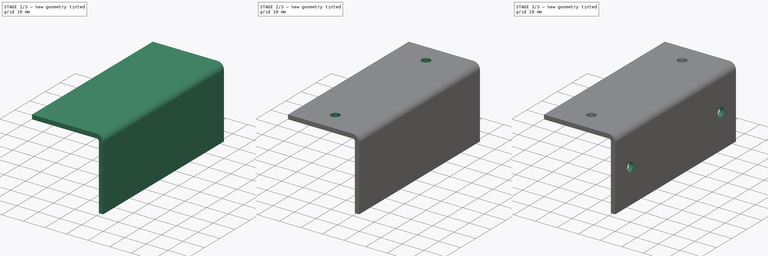
[diagram: build sequence overview — one tinted view per stage of 3, left to right]
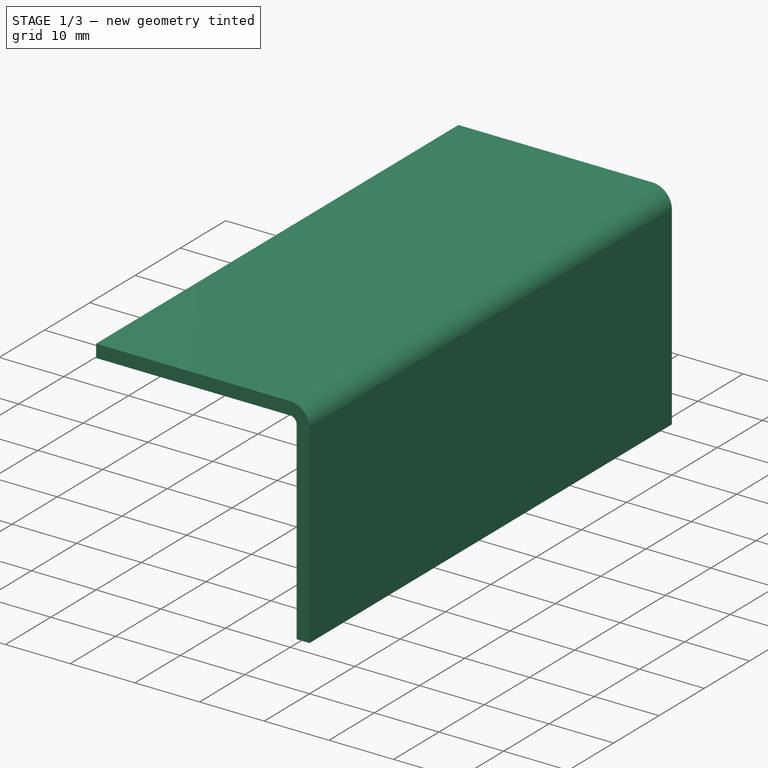
[diagram: stage 1 of 3 — iso view after this stage's code; geometry added in this stage tinted green]
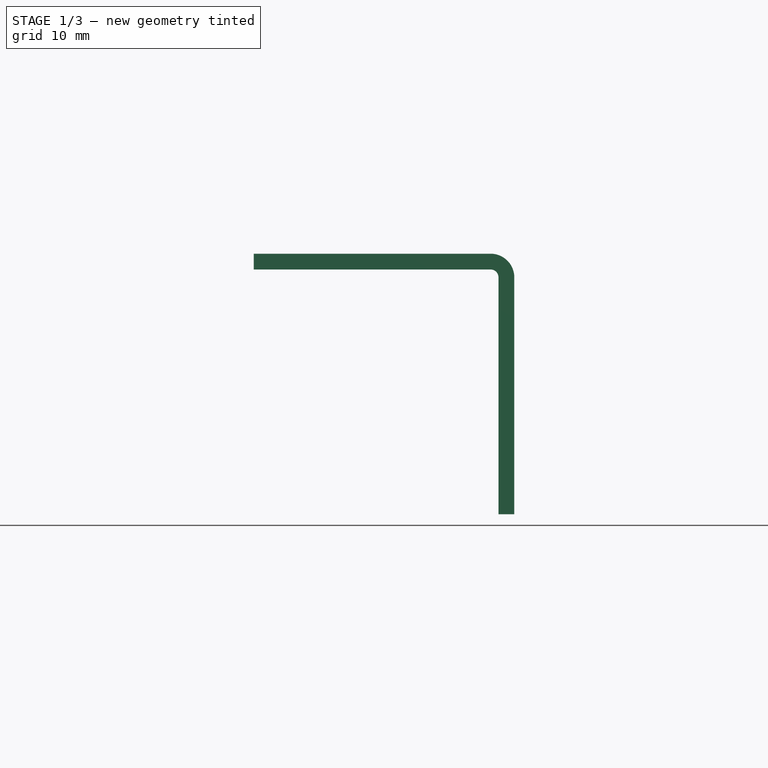
[diagram: stage 1 of 3 — front view after this stage's code; geometry added in this stage tinted green]
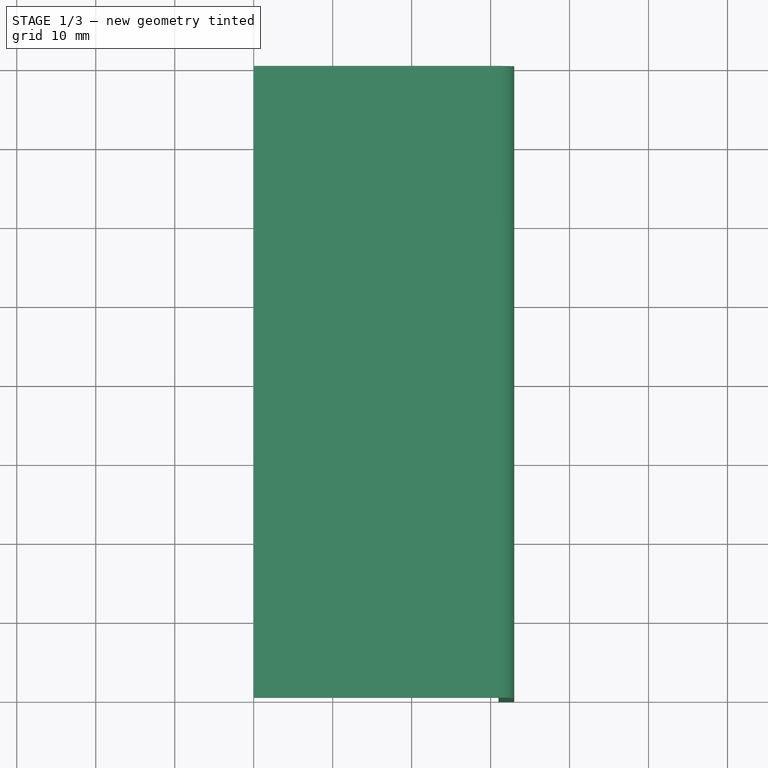
[diagram: stage 1 of 3 — top view after this stage's code; geometry added in this stage tinted green]
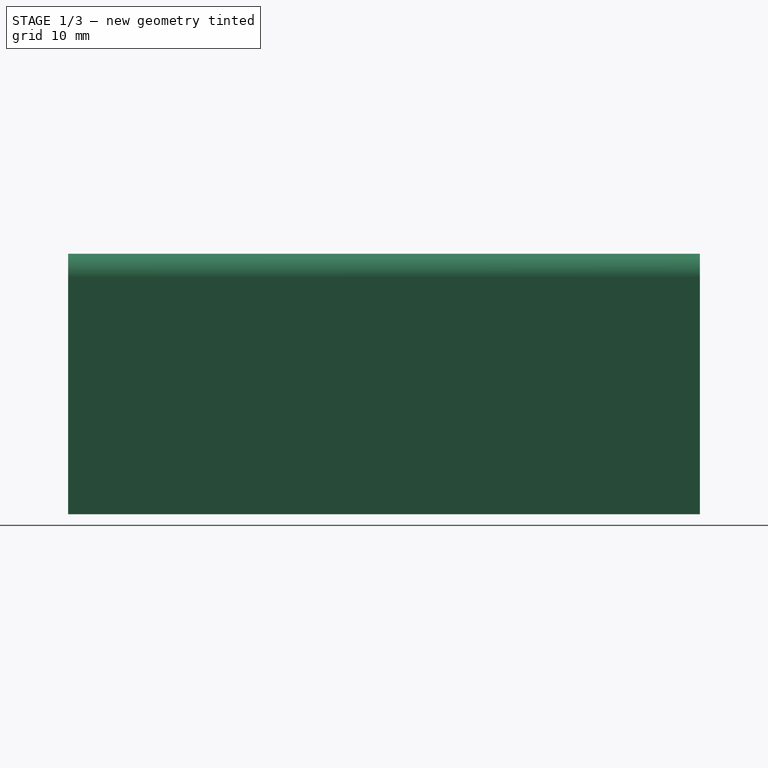
[diagram: stage 1 of 3 — right view after this stage's code; geometry added in this stage tinted green]
FCSTD DOCUMENT  (FreeCAD 0.17R13528 (Git))
Label: SupportPanneauDessusConsole
License: All rights reserved
LicenseURL: http://en.wikipedia.org/wiki/All_rights_reserved
objects: Drawing::FeatureViewPython×10, Sketcher::SketchObject×3, PartDesign::Pocket×3, Drawing::FeatureViewPart×3, Part::Box×1, Part::FeaturePython×1, PartDesign::FeatureBase×1, PartDesign::LinearPattern×1, PartDesign::Body×1, Drawing::FeaturePage×1
note: 14 computed .brp shape members not serialized (recipe doc carries the construction recipe); baked Part::Feature solids carry a one-line shape summary decoded from their .brp

FEATURE [Part::Box] Box  label="Cube"
  AttacherType = Attacher::AttachEngine3D
  Height = 2
  Length = 30
  Width = 80
FEATURE [Part::FeaturePython] Bend  # WARN: FeaturePython — macro-defined, semantics opaque (R4)
  angle = 90
  baseObject = -> Box [Face2]
  gap1 = 0
  gap2 = 0
  invert = true
  length = 30
  radius = 1
  reliefd = 1
  reliefw = 0.5
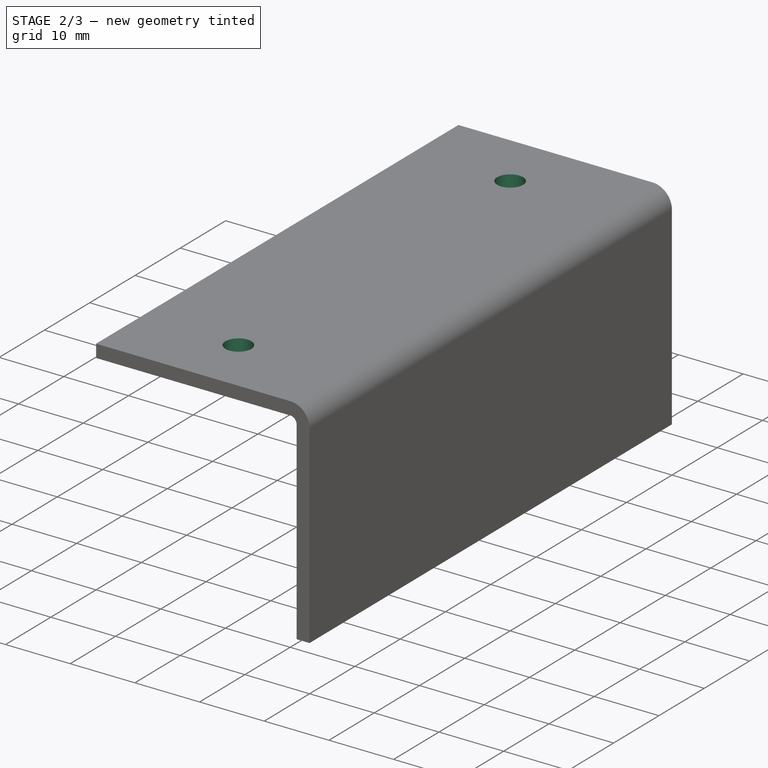
[diagram: stage 2 of 3 — iso view after this stage's code; geometry added in this stage tinted green]
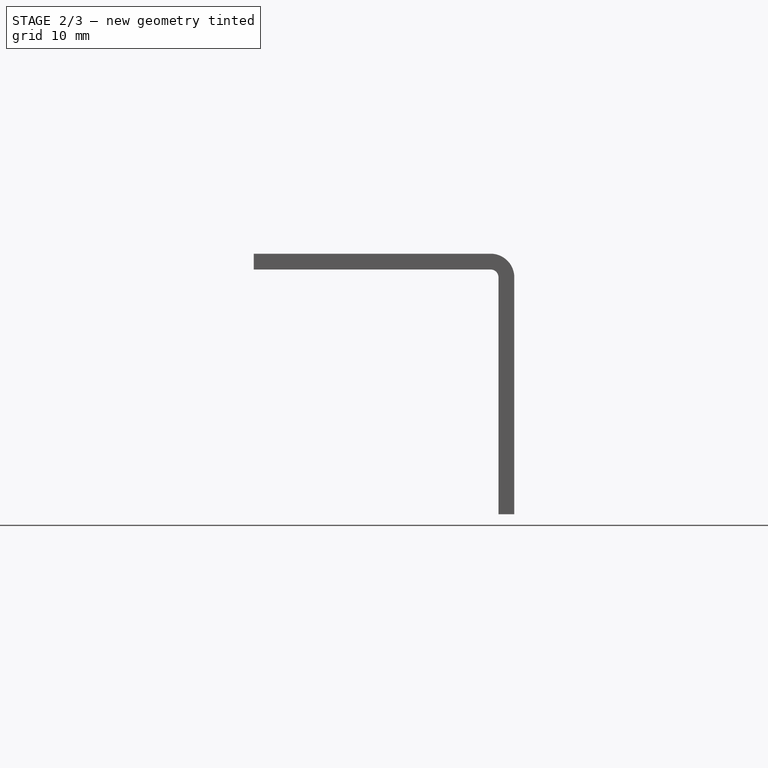
[diagram: stage 2 of 3 — front view after this stage's code; geometry added in this stage tinted green]
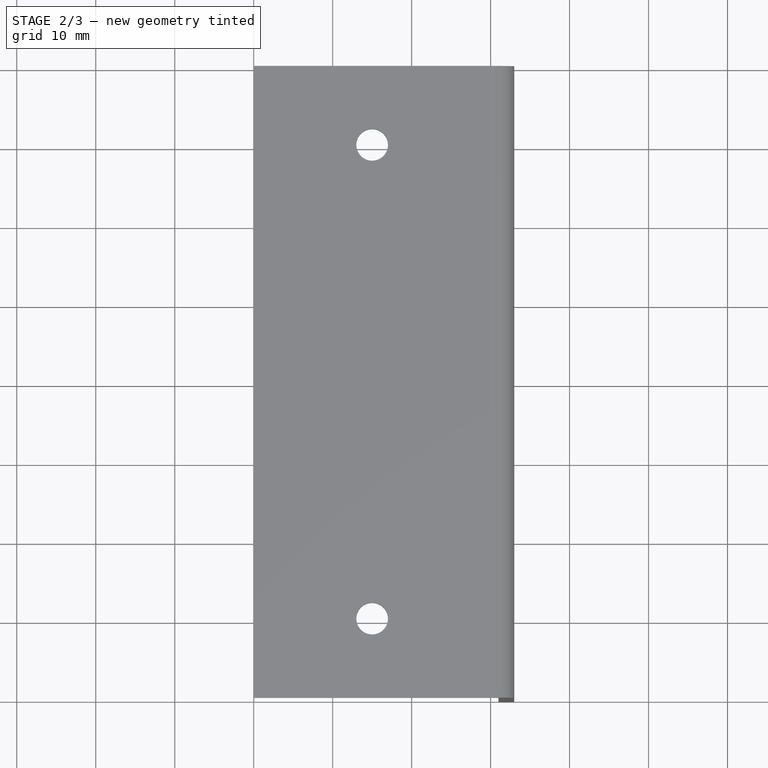
[diagram: stage 2 of 3 — top view after this stage's code; geometry added in this stage tinted green]
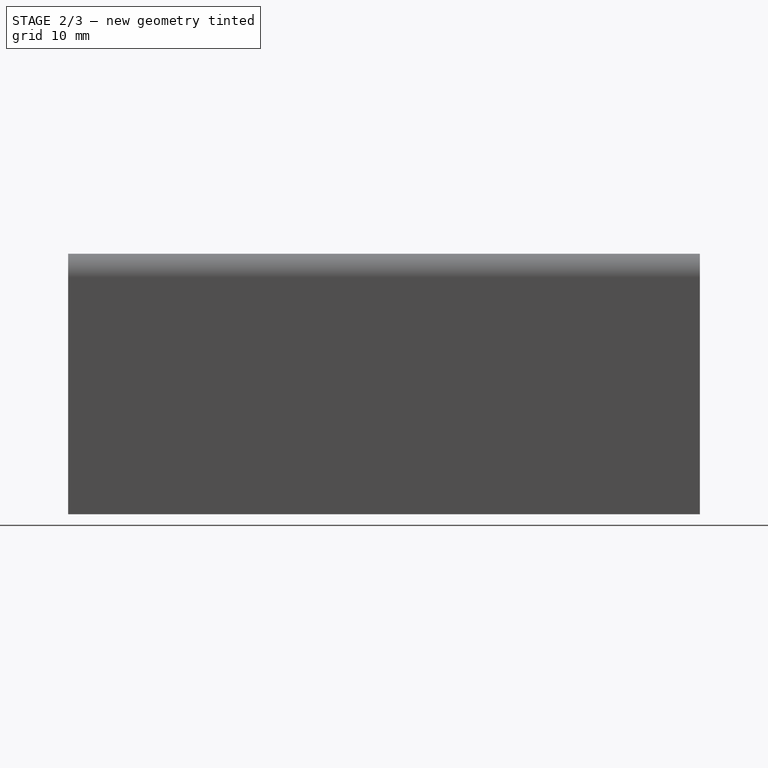
[diagram: stage 2 of 3 — right view after this stage's code; geometry added in this stage tinted green]
FEATURE [PartDesign::FeatureBase] BaseFeature
  BaseFeature = -> Bend
FEATURE [Sketcher::SketchObject] Sketch
  MapMode = 5
  Placement = pos=(0,0,2) rot=(0,0,1;0rad)
  Support = -> [BaseFeature]
  sketch-geometry (1):
    g0: Circle CenterX=15 CenterY=10 CenterZ=0 NormalX=0 NormalY=0 NormalZ=1 AngleXU=0 Radius=2
  constraints (3):
    c: DistanceX(g0) = 15
    c: DistanceY(g0) = 10
    c: Radius(g0) = 2
FEATURE [PartDesign::Pocket] Pocket
  BaseFeature = -> BaseFeature
  Length = 5
  Length2 = 100
  Profile = -> Sketch
  Refine = true
  Type = 1
FEATURE [PartDesign::LinearPattern] LinearPattern
  BaseFeature = -> Pocket
  Direction = -> Y_Axis
  Length = 60
  Occurrences = 2
  Originals = -> [Pocket]
  Refine = true
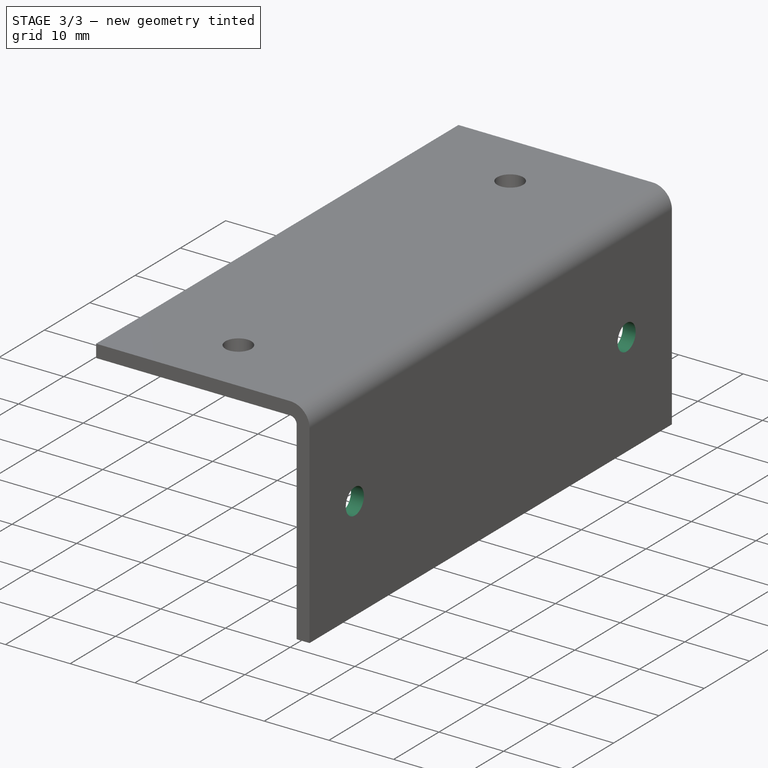
[diagram: stage 3 of 3 — iso view after this stage's code; geometry added in this stage tinted green]
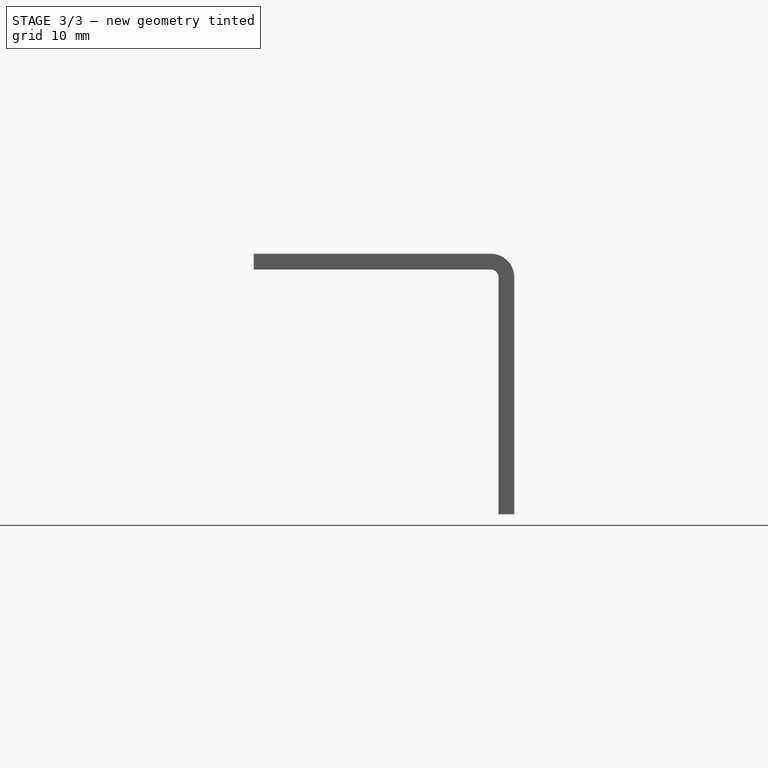
[diagram: stage 3 of 3 — front view after this stage's code; geometry added in this stage tinted green]
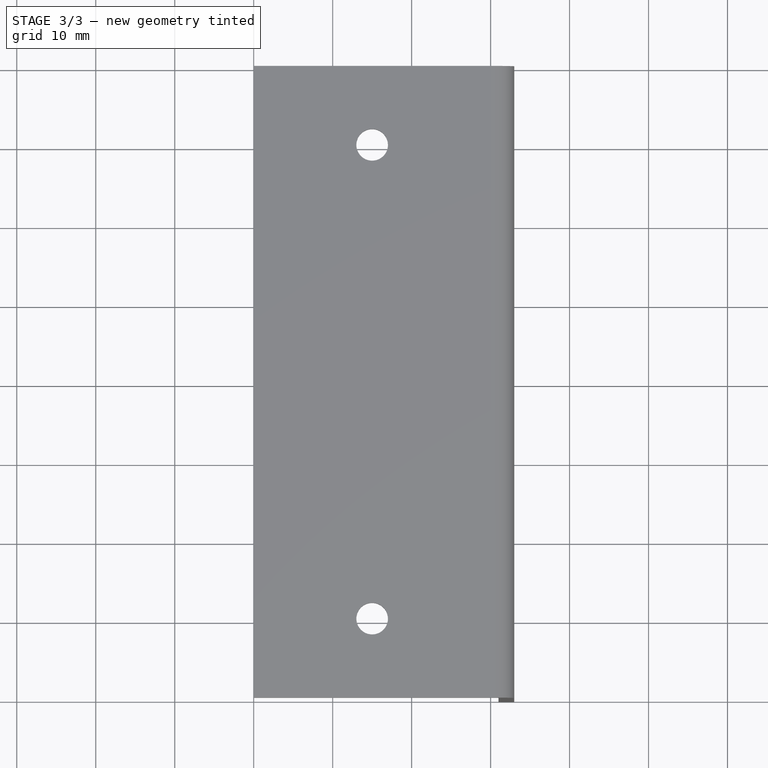
[diagram: stage 3 of 3 — top view after this stage's code; geometry added in this stage tinted green]
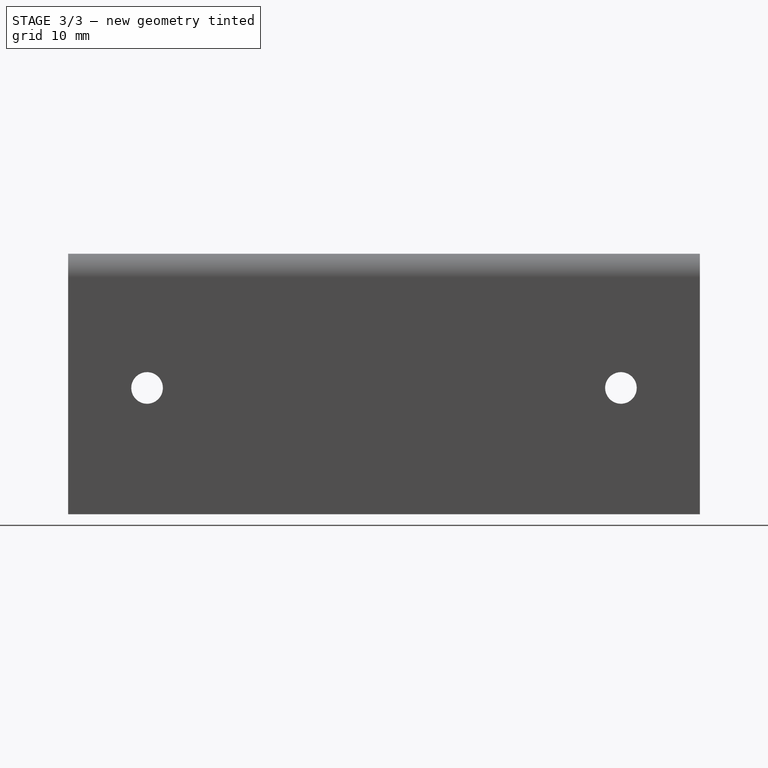
[diagram: stage 3 of 3 — right view after this stage's code; geometry added in this stage tinted green]
FEATURE [Sketcher::SketchObject] Sketch001
  MapMode = 5
  Placement = pos=(33,0,0) rot=(0.57735,0.57735,0.57735;2.0944rad)
  Support = -> [LinearPattern]
  sketch-geometry (1):
    g0: Circle CenterX=10 CenterY=-15 CenterZ=0 NormalX=0 NormalY=0 NormalZ=1 AngleXU=0 Radius=2
  constraints (3):
    c: DistanceX(g0) = 10
    c: DistanceY(g0) = -15
    c: Radius(g0) = 2
FEATURE [PartDesign::Pocket] Pocket001
  BaseFeature = -> LinearPattern
  Length = 5
  Length2 = 100
  Profile = -> Sketch001
  Refine = true
  Type = 1
FEATURE [Sketcher::SketchObject] Sketch002
  MapMode = 5
  Placement = pos=(33,0,0) rot=(0.57735,0.57735,0.57735;2.0944rad)
  Support = -> [Pocket001]
  sketch-geometry (1):
    g0: Circle CenterX=70 CenterY=-15 CenterZ=0 NormalX=0 NormalY=0 NormalZ=1 AngleXU=0 Radius=2
  constraints (3):
    c: DistanceX(g0) = 70
    c: DistanceY(g0) = -15
    c: Radius(g0) = 2
FEATURE [PartDesign::Pocket] Pocket002
  BaseFeature = -> Pocket001
  Length = 5
  Length2 = 100
  Profile = -> Sketch002
  Refine = true
  Type = 1
FEATURE [PartDesign::Body] Body
  BaseFeature = -> Bend
  Group = -> [BaseFeature,Sketch,Pocket,LinearPattern,Sketch001,Pocket001,Sketch002,Pocket002]
  Origin = -> Origin
  Tip = -> Pocket002
FEATURE [Drawing::FeatureViewPart] Ortho  label="Ortho_0_0"
  Direction = (1,0,0)
  HiddenWidth = 0.15
  LineWidth = 0.35
  Rotation = -90
  ShowHiddenLines = true
  ShowSmoothLines = false
  Source = -> Pocket002
  Tolerance = 0.05
  ViewResult = <blob: 6787 chars omitted>
  Visible = true
  X = 120
  Y = 106
FEATURE [Drawing::FeatureViewPart] Ortho004  label="Ortho_1_0"
  Direction = (0,-1,0)
  HiddenWidth = 0.15
  LineWidth = 0.35
  Rotation = 90
  ShowHiddenLines = true
  ShowSmoothLines = false
  Source = -> Pocket002
  Tolerance = 0.05
  ViewResult = <blob: 6730 chars omitted>
  Visible = true
  X = 233.5
  Y = 106
FEATURE [Drawing::FeatureViewPart] Ortho005  label="Ortho_-1_1"
  Direction = (0.57735,0.57735,-0.57735)
  HiddenWidth = 0.15
  LineWidth = 0.35
  Rotation = 60
  ShowHiddenLines = true
  ShowSmoothLines = false
  Source = -> Pocket002
  Tolerance = 0.05
  ViewResult = <blob: 5210 chars omitted>
  Visible = true
  X = 53.383
  Y = 71.2268
FEATURE [Drawing::FeatureViewPython] dim001  # drawing view (typed FeaturePython)
  Rotation = 0
  ViewResult = <g> \n  <line x1="120.000000" y1="139.000000" x2="120.000000" y2="151.000000" style="stroke:rgb(0,0,255);stroke-width:0.30" />\n<line x1="200.000000" y1="139.000000" x2="200.000000" y2="151.000000" style="stroke:rgb(0,0,255);stroke-width:0.30" />\n<line x1="120.000000" y1="150.000000" x2="200.000000" y2="150.000000" style="stroke:rgb(0,0,255);stroke-width:0.30" /> \n  <polygon points="200.000000,150.000000 197.000000,149.000000 196.000000,150.000000 197.000000,151.000000" style="fill:rgb(0,0,255);stroke:rgb(0,0,255);stroke-width:0" /><polygon points="120.000000,150.000000 123.000000,151.000000 124.000000,150.000000 123.000000,149.000000" style="fill:rgb(0,0,255);stroke:rgb(0,0,255);stroke-width:0" /> \n  <text x="160.000000" y="148.000000" font-family="Verdana" font-size="3.6" fill="rgb(0,0,255)" text-anchor="middle" transform="rotate(0.000000 160.000000,148.000000)" > 80</text> </g>
  Visible = true
  X = 0
  Y = 0
  arrowL1 = 3
  arrowL2 = 1
  arrowW = 2
  arrow_scheme = 0
  autoPlaceOffset = 2
  autoPlaceText = true
  click1_x = 140
  click1_y = 150
  click2_x = 140
  click2_y = 150
  comma_decimal_place = false
  dimension_line_overshoot = 1
  gap_datum_points = 2
  halfDimension_linear = false
  lineColor = rgb(0,0,255)
  strokeWidth = 0.3
  textFormat_linear = %(value)3.0f
  textRenderer_color = rgb(0,0,255)
  textRenderer_family = Verdana
  textRenderer_size = 3.6
  unit_custom_scale = 1
  unit_scheme = 0
FEATURE [Drawing::FeatureViewPython] dim002  # drawing view (typed FeaturePython)
  Rotation = 0
  ViewResult = <g> \n  <line x1="233.500000" y1="102.000000" x2="233.500000" y2="89.000000" style="stroke:rgb(0,0,255);stroke-width:0.30" />\n<line x1="263.500000" y1="102.000000" x2="263.500000" y2="89.000000" style="stroke:rgb(0,0,255);stroke-width:0.30" />\n<line x1="233.500000" y1="90.000000" x2="263.500000" y2="90.000000" style="stroke:rgb(0,0,255);stroke-width:0.30" /> \n  <polygon points="263.500000,90.000000 260.500000,89.000000 259.500000,90.000000 260.500000,91.000000" style="fill:rgb(0,0,255);stroke:rgb(0,0,255);stroke-width:0" /><polygon points="233.500000,90.000000 236.500000,91.000000 237.500000,90.000000 236.500000,89.000000" style="fill:rgb(0,0,255);stroke:rgb(0,0,255);stroke-width:0" /> \n  <text x="248.500000" y="88.000000" font-family="Verdana" font-size="3.6" fill="rgb(0,0,255)" text-anchor="middle" transform="rotate(0.000000 248.500000,88.000000)" > 30</text> </g>
  Visible = true
  X = 0
  Y = 0
  arrowL1 = 3
  arrowL2 = 1
  arrowW = 2
  arrow_scheme = 0
  autoPlaceOffset = 2
  autoPlaceText = true
  click1_x = 240
  click1_y = 90
  click2_x = 240
  click2_y = 90
  comma_decimal_place = false
  dimension_line_overshoot = 1
  gap_datum_points = 2
  halfDimension_linear = false
  lineColor = rgb(0,0,255)
  strokeWidth = 0.3
  textFormat_linear = %(value)3.0f
  textRenderer_color = rgb(0,0,255)
  textRenderer_family = Verdana
  textRenderer_size = 3.6
  unit_custom_scale = 1
  unit_scheme = 0
FEATURE [Drawing::FeatureViewPython] dim003  # drawing view (typed FeaturePython)
  Rotation = 0
  ViewResult = <g> \n  <line x1="268.500000" y1="107.000000" x2="281.000000" y2="107.000000" style="stroke:rgb(0,0,255);stroke-width:0.30" />\n<line x1="268.500000" y1="137.000000" x2="281.000000" y2="137.000000" style="stroke:rgb(0,0,255);stroke-width:0.30" />\n<line x1="280.000000" y1="107.000000" x2="280.000000" y2="137.000000" style="stroke:rgb(0,0,255);stroke-width:0.30" /> \n  <polygon points="280.000000,137.000000 281.000000,134.000000 280.000000,133.000000 279.000000,134.000000" style="fill:rgb(0,0,255);stroke:rgb(0,0,255);stroke-width:0" /><polygon points="280.000000,107.000000 279.000000,110.000000 280.000000,111.000000 281.000000,110.000000" style="fill:rgb(0,0,255);stroke:rgb(0,0,255);stroke-width:0" /> \n  <text x="278.000000" y="122.000000" font-family="Verdana" font-size="3.6" fill="rgb(0,0,255)" text-anchor="middle" transform="rotate(-90.000000 278.000000,122.000000)" > 30</text> </g>
  Visible = true
  X = 0
  Y = 0
  arrowL1 = 3
  arrowL2 = 1
  arrowW = 2
  arrow_scheme = 0
  autoPlaceOffset = 2
  autoPlaceText = true
  click1_x = 280
  click1_y = 110
  click2_x = 280
  click2_y = 110
  comma_decimal_place = false
  dimension_line_overshoot = 1
  gap_datum_points = 2
  halfDimension_linear = false
  lineColor = rgb(0,0,255)
  strokeWidth = 0.3
  textFormat_linear = %(value)3.0f
  textRenderer_color = rgb(0,0,255)
  textRenderer_family = Verdana
  textRenderer_size = 3.6
  unit_custom_scale = 1
  unit_scheme = 0
FEATURE [Drawing::FeatureViewPython] dim004  # drawing view (typed FeaturePython)
  Rotation = 0
  ViewResult = <g> <line x1="130.000000" y1="125.000030" x2="130.000000" y2="131.000000" style="stroke:rgb(0,0,255);stroke-width:0.30" />\n<line x1="120.000000" y1="130.000000" x2="130.000000" y2="130.000000" style="stroke:rgb(0,0,255);stroke-width:0.30" />\n<polygon points="120.000000,130.000000 117.000000,129.000000 116.000000,130.000000 117.000000,131.000000" style="fill:rgb(0,0,255);stroke:rgb(0,0,255);stroke-width:0" />\n<polygon points="130.000000,130.000000 133.000000,131.000000 134.000000,130.000000 133.000000,129.000000" style="fill:rgb(0,0,255);stroke:rgb(0,0,255);stroke-width:0" />\n<text x="125.000000" y="128.000000" font-family="Verdana" font-size="3.6" fill="rgb(0,0,255)" text-anchor="middle" transform="rotate(0.000000 125.000000,128.000000)" > 10</text> </g> 
  Visible = true
  X = 0
  Y = 0
  arrowL1 = 3
  arrowL2 = 1
  arrowW = 2
  arrow_scheme = 0
  autoPlaceOffset = 2
  autoPlaceText = true
  click1_x = 125
  click1_y = 130
  click2_x = 125
  click2_y = 130
  comma_decimal_place = false
  dimension_line_overshoot = 1
  gap_datum_points = 2
  halfDimension_linear = false
  lineColor = rgb(0,0,255)
  strokeWidth = 0.3
  textFormat_linear = %(value)3.0f
  textRenderer_color = rgb(0,0,255)
  textRenderer_family = Verdana
  textRenderer_size = 3.6
  unit_custom_scale = 1
  unit_scheme = 0
FEATURE [Drawing::FeatureViewPython] dim005  # drawing view (typed FeaturePython)
  Rotation = 0
  ViewResult = <g> <line x1="190.000000" y1="125.000030" x2="190.000000" y2="131.000000" style="stroke:rgb(0,0,255);stroke-width:0.30" />\n<line x1="200.000000" y1="130.000000" x2="190.000000" y2="130.000000" style="stroke:rgb(0,0,255);stroke-width:0.30" />\n<polygon points="200.000000,130.000000 203.000000,131.000000 204.000000,130.000000 203.000000,129.000000" style="fill:rgb(0,0,255);stroke:rgb(0,0,255);stroke-width:0" />\n<polygon points="190.000000,130.000000 187.000000,129.000000 186.000000,130.000000 187.000000,131.000000" style="fill:rgb(0,0,255);stroke:rgb(0,0,255);stroke-width:0" />\n<text x="195.000000" y="128.000000" font-family="Verdana" font-size="3.6" fill="rgb(0,0,255)" text-anchor="middle" transform="rotate(0.000000 195.000000,128.000000)" > 10</text> </g> 
  Visible = true
  X = 0
  Y = 0
  arrowL1 = 3
  arrowL2 = 1
  arrowW = 2
  arrow_scheme = 0
  autoPlaceOffset = 2
  autoPlaceText = true
  click1_x = 190
  click1_y = 130
  click2_x = 190
  click2_y = 130
  comma_decimal_place = false
  dimension_line_overshoot = 1
  gap_datum_points = 2
  halfDimension_linear = false
  lineColor = rgb(0,0,255)
  strokeWidth = 0.3
  textFormat_linear = %(value)3.0f
  textRenderer_color = rgb(0,0,255)
  textRenderer_family = Verdana
  textRenderer_size = 3.6
  unit_custom_scale = 1
  unit_scheme = 0
FEATURE [Drawing::FeatureViewPython] dim006  # drawing view (typed FeaturePython)
  Rotation = 0
  ViewResult = <g> <line x1="134.000080" y1="121.000000" x2="146.000000" y2="121.000000" style="stroke:rgb(0,0,255);stroke-width:0.30" />\n<line x1="145.000000" y1="137.000000" x2="145.000000" y2="121.000000" style="stroke:rgb(0,0,255);stroke-width:0.30" />\n<polygon points="145.000000,137.000000 146.000000,134.000000 145.000000,133.000000 144.000000,134.000000" style="fill:rgb(0,0,255);stroke:rgb(0,0,255);stroke-width:0" />\n<polygon points="145.000000,121.000000 144.000000,124.000000 145.000000,125.000000 146.000000,124.000000" style="fill:rgb(0,0,255);stroke:rgb(0,0,255);stroke-width:0" />\n<text x="143.000000" y="129.000000" font-family="Verdana" font-size="3.6" fill="rgb(0,0,255)" text-anchor="middle" transform="rotate(-90.000000 143.000000,129.000000)" > 16</text> </g> 
  Visible = true
  X = 0
  Y = 0
  arrowL1 = 3
  arrowL2 = 1
  arrowW = 2
  arrow_scheme = 0
  autoPlaceOffset = 2
  autoPlaceText = true
  click1_x = 145
  click1_y = 120
  click2_x = 145
  click2_y = 120
  comma_decimal_place = false
  dimension_line_overshoot = 1
  gap_datum_points = 2
  halfDimension_linear = false
  lineColor = rgb(0,0,255)
  strokeWidth = 0.3
  textFormat_linear = %(value)3.0f
  textRenderer_color = rgb(0,0,255)
  textRenderer_family = Verdana
  textRenderer_size = 3.6
  unit_custom_scale = 1
  unit_scheme = 0
FEATURE [Drawing::FeatureViewPython] dim007  # drawing view (typed FeaturePython)
  Rotation = 0
  ViewResult = <g> <line x1="185.999920" y1="121.000000" x2="174.000000" y2="121.000000" style="stroke:rgb(0,0,255);stroke-width:0.30" />\n<line x1="175.000000" y1="137.000000" x2="175.000000" y2="121.000000" style="stroke:rgb(0,0,255);stroke-width:0.30" />\n<polygon points="175.000000,137.000000 176.000000,134.000000 175.000000,133.000000 174.000000,134.000000" style="fill:rgb(0,0,255);stroke:rgb(0,0,255);stroke-width:0" />\n<polygon points="175.000000,121.000000 174.000000,124.000000 175.000000,125.000000 176.000000,124.000000" style="fill:rgb(0,0,255);stroke:rgb(0,0,255);stroke-width:0" />\n<text x="173.000000" y="129.000000" font-family="Verdana" font-size="3.6" fill="rgb(0,0,255)" text-anchor="middle" transform="rotate(-90.000000 173.000000,129.000000)" > 16</text> </g> 
  Visible = true
  X = 0
  Y = 0
  arrowL1 = 3
  arrowL2 = 1
  arrowW = 2
  arrow_scheme = 0
  autoPlaceOffset = 2
  autoPlaceText = true
  click1_x = 175
  click1_y = 120
  click2_x = 175
  click2_y = 120
  comma_decimal_place = false
  dimension_line_overshoot = 1
  gap_datum_points = 2
  halfDimension_linear = false
  lineColor = rgb(0,0,255)
  strokeWidth = 0.3
  textFormat_linear = %(value)3.0f
  textRenderer_color = rgb(0,0,255)
  textRenderer_family = Verdana
  textRenderer_size = 3.6
  unit_custom_scale = 1
  unit_scheme = 0
FEATURE [Drawing::FeatureViewPython] rad001  # drawing view (typed FeaturePython)
  Rotation = 0
  ViewResult = <g>  <circle cx ="130.000000" cy ="121.000000" r="0.500000" stroke="none" fill="rgb(0,0,255)" /> \n<line x1="135.000000" y1="115.000000" x2="130.000000" y2="121.000000" style="stroke:rgb(0,0,255);stroke-width:0.30" />\n<polygon points="131.280369,119.463557 133.969143,117.799078 133.841106,116.390672 132.432701,116.518709" style="fill:rgb(0,0,255);stroke:rgb(0,0,255);stroke-width:0" />\n<line x1="135.000000" y1="115.000000" x2="145.000000" y2="115.000000" style="stroke:rgb(0,0,255);stroke-width:0.30" />\n<text x="140.000000" y="113.000000" font-family="Verdana" font-size="3.6" fill="rgb(0,0,255)" text-anchor="middle" transform="rotate(0.000000 140.000000,113.000000)" >R  2</text> </g>
  Visible = true
  X = 0
  Y = 0
  arrowL1 = 3
  arrowL2 = 1
  arrowW = 2
  arrow_scheme = 0
  autoPlaceOffset = 2
  autoPlaceText = true
  centerPointDia = 1
  click1_x = 135
  click1_y = 115
  click2_x = 145
  click2_y = 115
  click3_x = 145
  click3_y = 115
  comma_decimal_place = false
  lineColor = rgb(0,0,255)
  strokeWidth = 0.3
  textFormat_radial = R%(value)3.0f
  textRenderer_color = rgb(0,0,255)
  textRenderer_family = Verdana
  textRenderer_size = 3.6
  unit_custom_scale = 1
  unit_scheme = 0
FEATURE [Drawing::FeatureViewPython] rad002  # drawing view (typed FeaturePython)
  Rotation = 0
  ViewResult = <g>  <circle cx ="190.000000" cy ="121.000000" r="0.500000" stroke="none" fill="rgb(0,0,255)" /> \n<line x1="185.000000" y1="115.000000" x2="190.000000" y2="121.000000" style="stroke:rgb(0,0,255);stroke-width:0.30" />\n<polygon points="188.719631,119.463557 187.567299,116.518709 186.158894,116.390672 186.030857,117.799078" style="fill:rgb(0,0,255);stroke:rgb(0,0,255);stroke-width:0" />\n<line x1="185.000000" y1="115.000000" x2="175.000000" y2="115.000000" style="stroke:rgb(0,0,255);stroke-width:0.30" />\n<text x="180.000000" y="113.000000" font-family="Verdana" font-size="3.6" fill="rgb(0,0,255)" text-anchor="middle" transform="rotate(0.000000 180.000000,113.000000)" >R  2</text> </g>
  Visible = true
  X = 0
  Y = 0
  arrowL1 = 3
  arrowL2 = 1
  arrowW = 2
  arrow_scheme = 0
  autoPlaceOffset = 2
  autoPlaceText = true
  centerPointDia = 1
  click1_x = 185
  click1_y = 115
  click2_x = 175
  click2_y = 115
  click3_x = 175
  click3_y = 115
  comma_decimal_place = false
  lineColor = rgb(0,0,255)
  strokeWidth = 0.3
  textFormat_radial = R%(value)3.0f
  textRenderer_color = rgb(0,0,255)
  textRenderer_family = Verdana
  textRenderer_size = 3.6
  unit_custom_scale = 1
  unit_scheme = 0
FEATURE [Drawing::FeatureViewPython] dim008  # drawing view (typed FeaturePython)
  Rotation = 0
  ViewResult = <g> \n  <line x1="118.000000" y1="107.000000" x2="104.000000" y2="107.000000" style="stroke:rgb(0,0,255);stroke-width:0.30" />\n<line x1="118.000000" y1="137.000000" x2="104.000000" y2="137.000000" style="stroke:rgb(0,0,255);stroke-width:0.30" />\n<line x1="105.000000" y1="107.000000" x2="105.000000" y2="137.000000" style="stroke:rgb(0,0,255);stroke-width:0.30" /> \n  <polygon points="105.000000,137.000000 106.000000,134.000000 105.000000,133.000000 104.000000,134.000000" style="fill:rgb(0,0,255);stroke:rgb(0,0,255);stroke-width:0" /><polygon points="105.000000,107.000000 104.000000,110.000000 105.000000,111.000000 106.000000,110.000000" style="fill:rgb(0,0,255);stroke:rgb(0,0,255);stroke-width:0" /> \n  <text x="103.000000" y="122.000000" font-family="Verdana" font-size="3.6" fill="rgb(0,0,255)" text-anchor="middle" transform="rotate(-90.000000 103.000000,122.000000)" > 30</text> </g>
  Visible = true
  X = 0
  Y = 0
  arrowL1 = 3
  arrowL2 = 1
  arrowW = 2
  arrow_scheme = 0
  autoPlaceOffset = 2
  autoPlaceText = true
  click1_x = 105
  click1_y = 120
  click2_x = 105
  click2_y = 120
  comma_decimal_place = false
  dimension_line_overshoot = 1
  gap_datum_points = 2
  halfDimension_linear = false
  lineColor = rgb(0,0,255)
  strokeWidth = 0.3
  textFormat_linear = %(value)3.0f
  textRenderer_color = rgb(0,0,255)
  textRenderer_family = Verdana
  textRenderer_size = 3.6
  unit_custom_scale = 1
  unit_scheme = 0
FEATURE [Drawing::FeaturePage] Page
  EditableTexts = AUTHOR NAME | DRAWING TITLE | FreeCAD DRAWING | A4 | X / Y | SCALE | PN | DN | DD/MM/YYYY | REV A
  Group = -> [Ortho,Ortho004,Ortho005,dim001,dim002,dim003,dim004,dim005,dim006,dim007,rad001,rad002,dim008]
  Template = <path>
note: 1 file-system path scrubbed to <path> (originals preserved in the JSON sidecar)
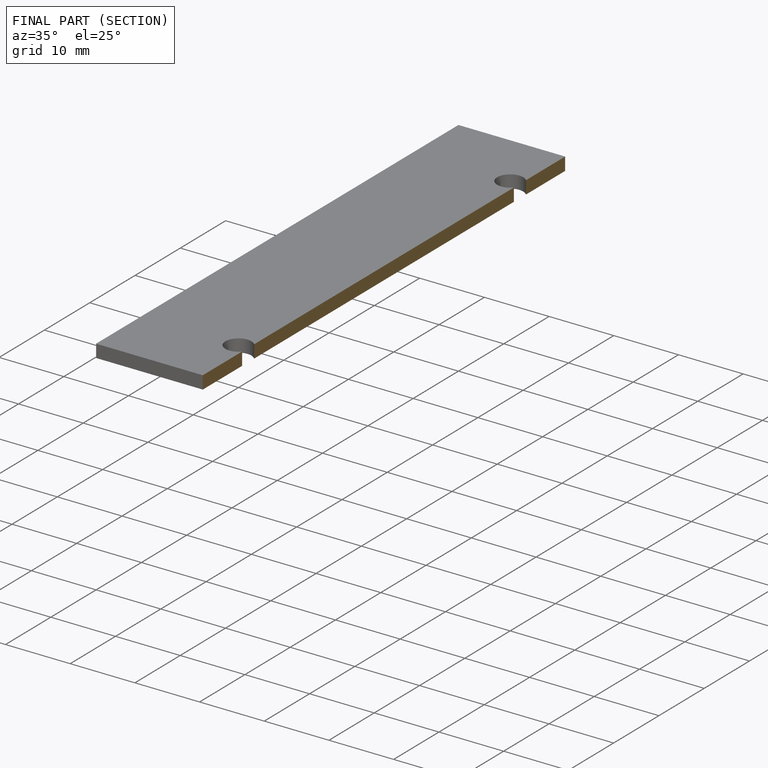
[diagram: finished part — half-section view (interior)]
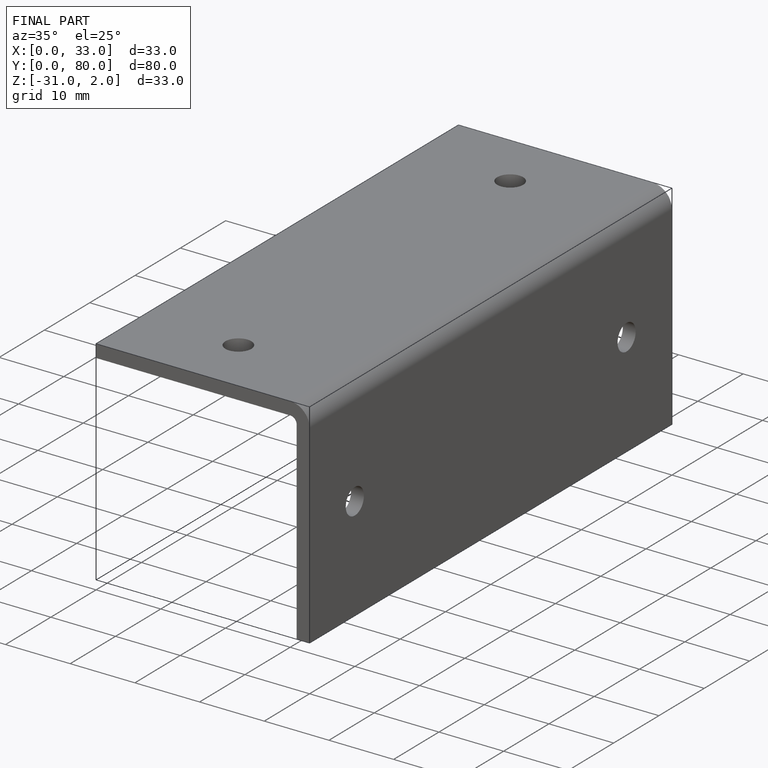
[diagram: finished part — iso view with bounding-box wireframe]
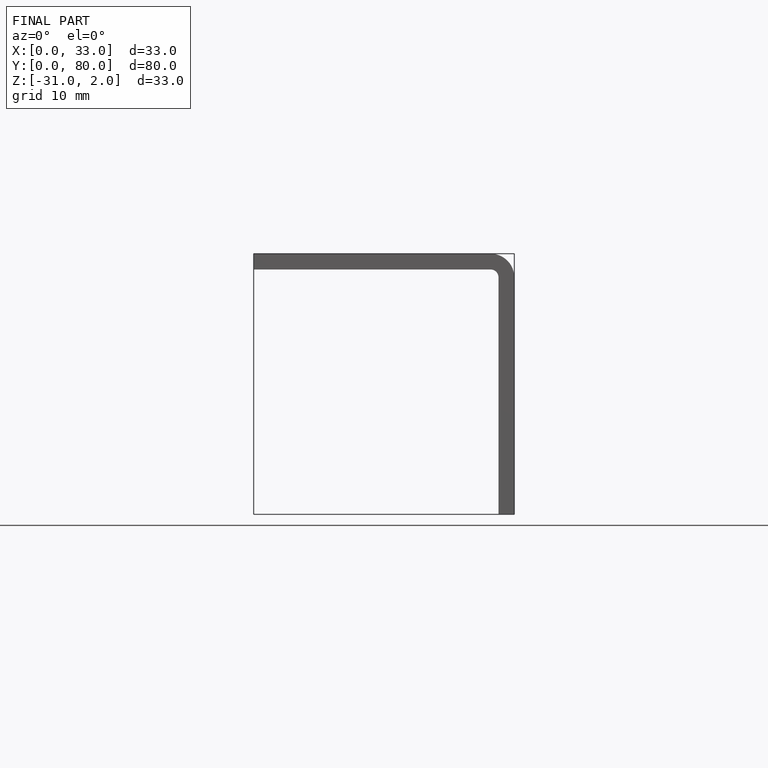
[diagram: finished part — front view with bounding-box wireframe]
